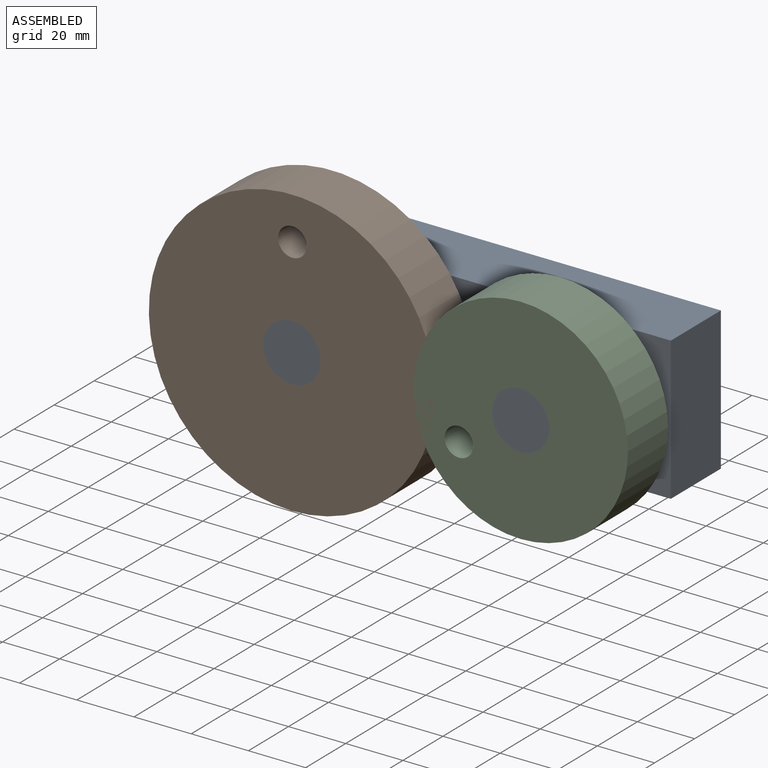
[diagram: assembled view]
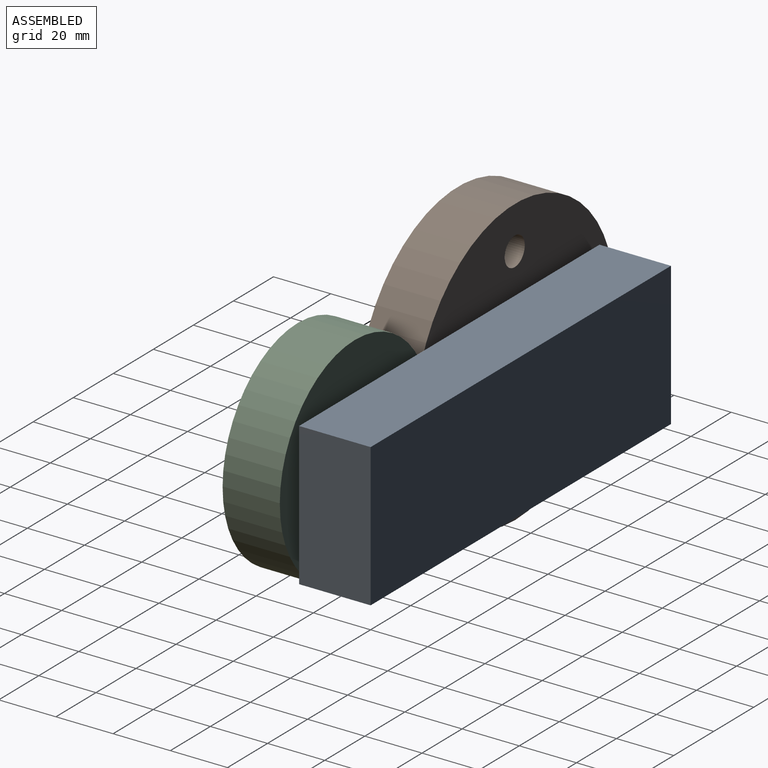
[diagram: assembled view, second angle]
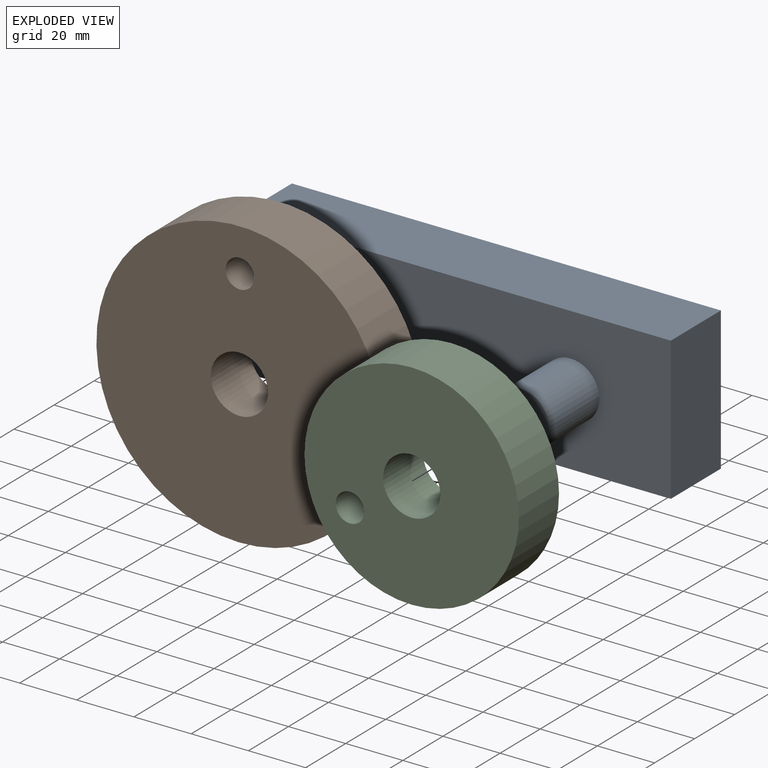
[diagram: exploded view]
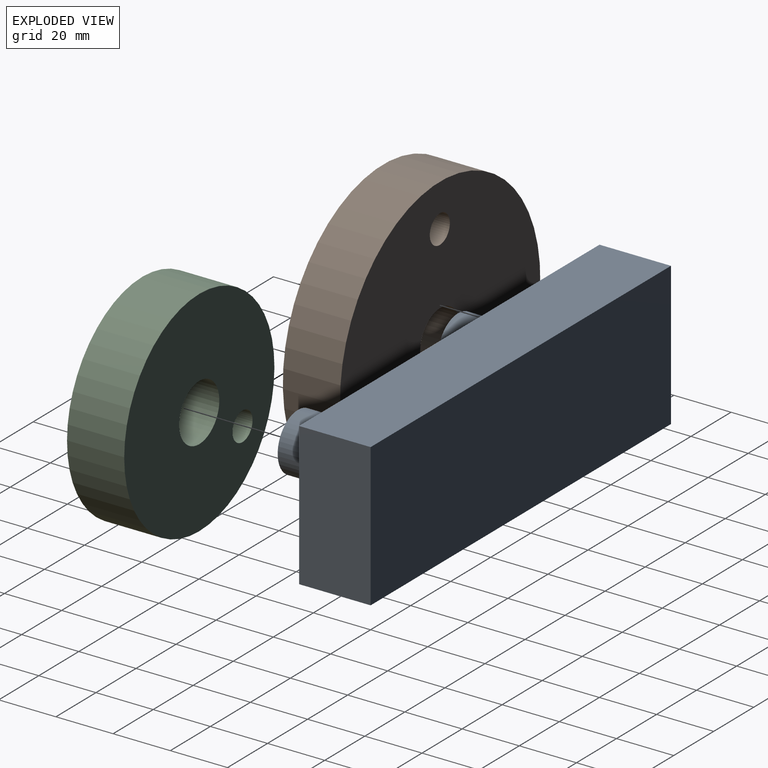
[diagram: exploded view, second angle]
ASSEMBLY  parts=3 mates=2
PART A: 10 faces, bbox 150x50x50 mm
  f0: plane 150x25mm, normal (0,0,1), area 3750mm2, adj f1,f3,f4,f5
  f1: plane 50x25mm, normal (-1,0,0), area 1250mm2, adj f0,f2,f4,f5
  f2: plane 150x25mm, normal (0,0,-1), area 3750mm2, adj f1,f3,f4,f5
  f3: plane 50x25mm, normal (1,0,0), area 1250mm2, adj f0,f2,f4,f5
  f4: plane 150x50mm, normal (0,1,0), area 7500mm2, adj f0,f1,f2,f3
  f5: plane 150x50mm, normal (0,-1,0), area 6871.7mm2, adj f0,f1,f2,f3,f6,f8
  f6: cylinder r=10mm len=25mm, axis (0,1,0), area 1570.8mm2, adj f5,f7
  f7: plane 20x20mm, normal (0,-1,0), area 314.2mm2, adj f6
  f8: cylinder r=10mm len=25mm, axis (0,1,0), area 1570.8mm2, adj f5,f9
  f9: plane 20x20mm, normal (0,-1,0), area 314.2mm2, adj f8
PART B: 5 faces, bbox 100x20x100 mm
  f0: cylinder r=5mm len=20mm, axis (0,1,0), area 628.3mm2, adj f3,f4
  f1: cylinder r=10mm len=20mm, axis (0,1,0), area 1256.6mm2, adj f3,f4
  f2: cylinder r=50mm len=100mm, axis (0,1,0), area 6283.2mm2, adj f3,f4
  f3: plane 100x100mm, normal (0,-1,0), area 7461.3mm2, adj f0,f1,f2
  f4: plane 100x100mm, normal (0,1,0), area 7461.3mm2, adj f0,f1,f2
PART C: 5 faces, bbox 75x20x75 mm
  f0: cylinder r=5mm len=20mm, axis (0,1,0), area 628.3mm2, adj f3,f4
  f1: cylinder r=10mm len=20mm, axis (0,1,0), area 1256.6mm2, adj f3,f4
  f2: cylinder r=37.5mm len=75mm, axis (0,1,0), area 4712.4mm2, adj f3,f4
  f3: plane 75x75mm, normal (0,-1,0), area 4025.2mm2, adj f0,f1,f2
  f4: plane 75x75mm, normal (0,1,0), area 4025.2mm2, adj f0,f1,f2
PLACE A t=(0.67,0,0.16)mm fixed
PLACE B rot(axis=(0,1,0),0.3deg) t=(-39.33,-5,0.16)mm
PLACE C rot(axis=(0,-1,0),120.2deg) t=(40.67,-5,0.16)mm
MATE revolute B.f2 <-> A.f6  axis (0,-1,0) through (-39.33,-25,0.16)mm
MATE revolute C.f2 <-> A.f8  axis (0,-1,0) through (40.67,-25,0.16)mm
